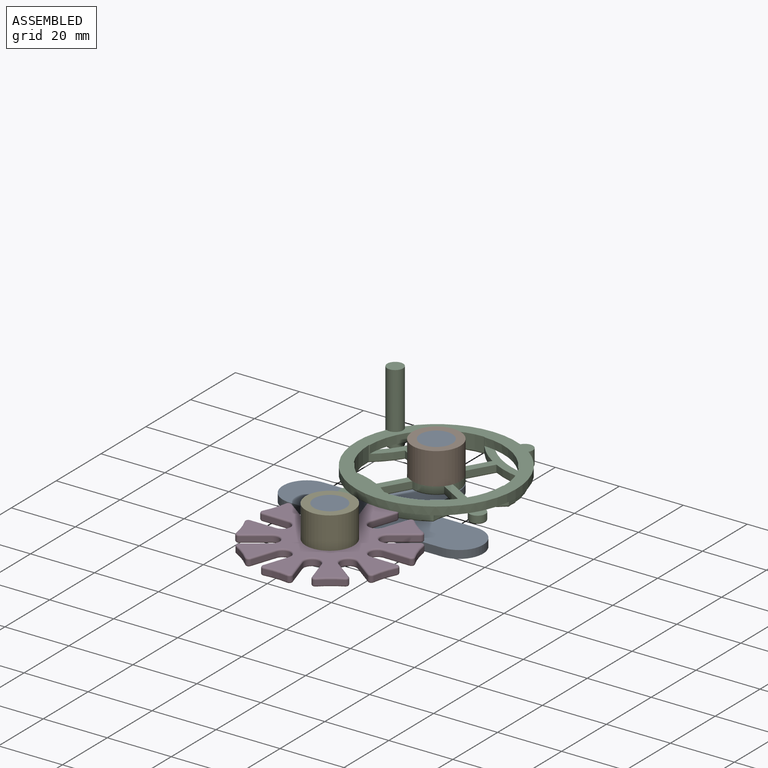
[diagram: assembled view]
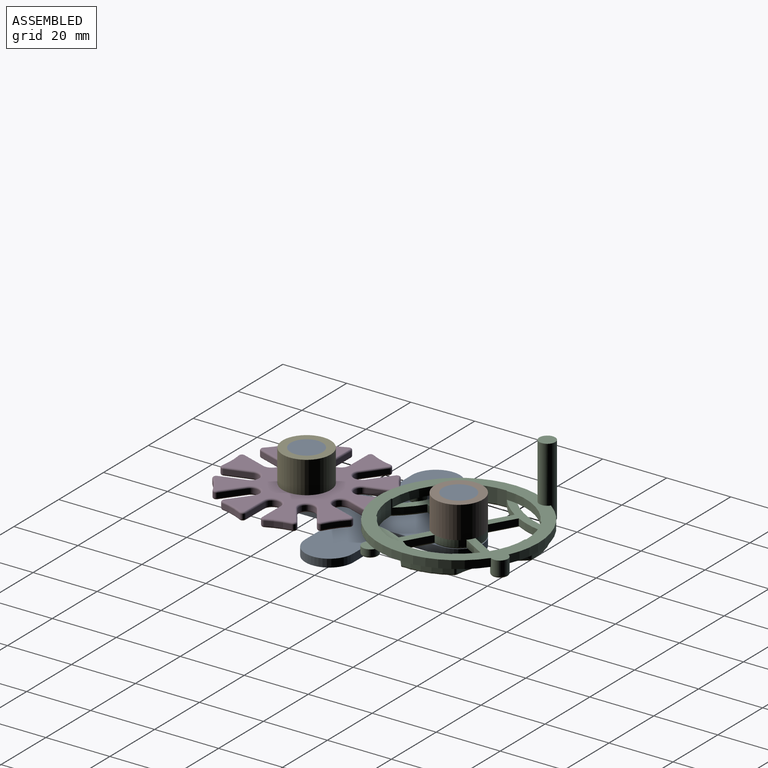
[diagram: assembled view, second angle]
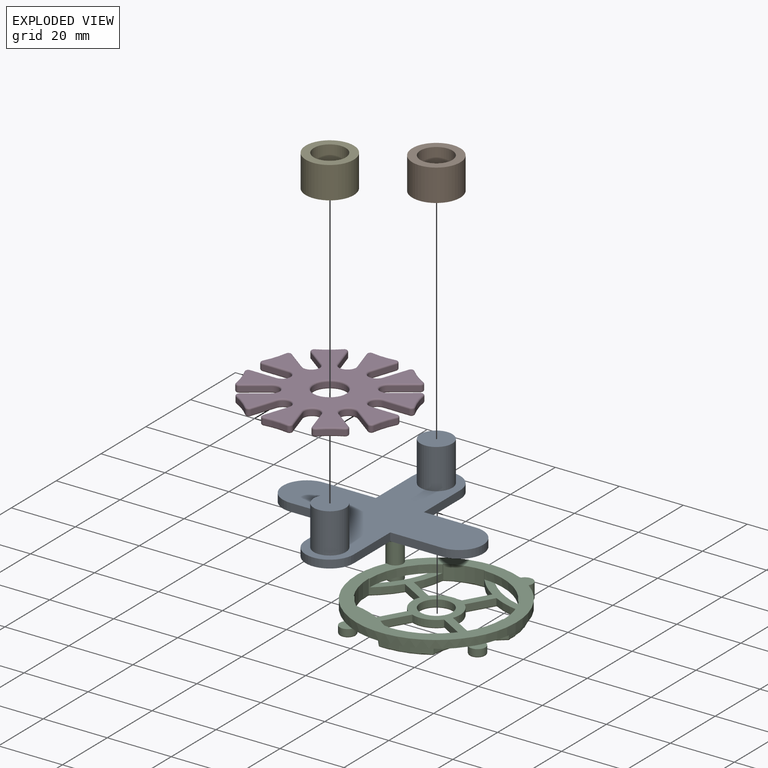
[diagram: exploded view]
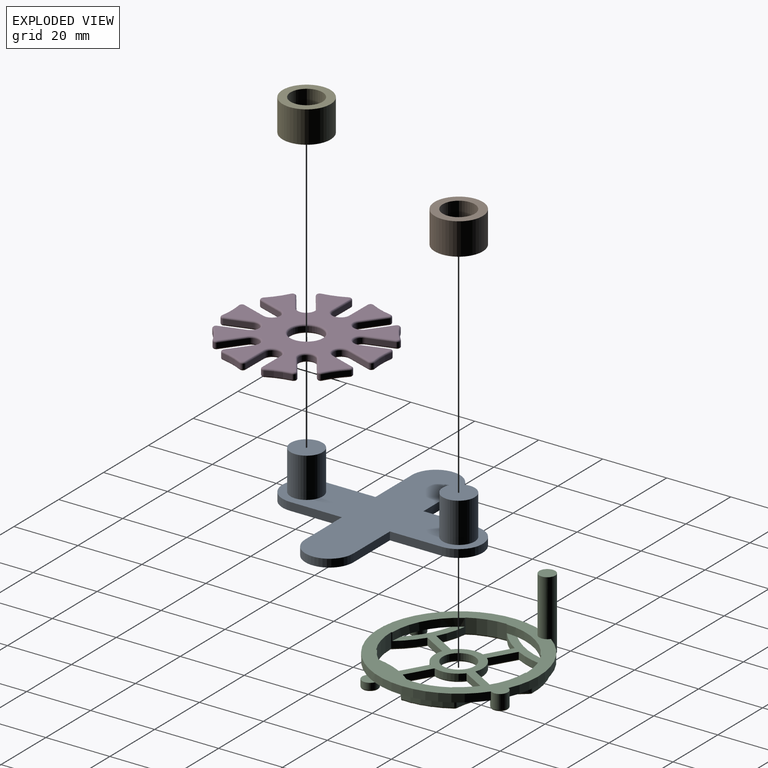
[diagram: exploded view, second angle]
ASSEMBLY  parts=5 mates=4
PART A: 18 faces, bbox 62.6x62.6x15 mm
  f0: plane 16.28x2.5mm, normal (-1,0,0), area 40.7mm2, adj f1,f11,f12,f13
  f1: plane 16.28x2.5mm, normal (0,1,0), area 40.7mm2, adj f0,f2,f12,f13
  f2: cylinder r=7.5mm len=15mm, axis (0,0,-1), area 58.9mm2, adj f1,f3,f12,f13
  f3: plane 16.28x2.5mm, normal (0,-1,0), area 40.7mm2, adj f2,f4,f12,f13
  f4: plane 16.28x2.5mm, normal (-1,0,0), area 40.7mm2, adj f3,f5,f12,f13
  f5: cylinder r=7.5mm len=15mm, axis (0,0,-1), area 58.9mm2, adj f4,f6,f12,f13
  f6: plane 16.28x2.5mm, normal (1,0,0), area 40.7mm2, adj f5,f7,f12,f13
  f7: plane 16.28x2.5mm, normal (0,-1,0), area 40.7mm2, adj f6,f8,f12,f13
  f8: cylinder r=7.5mm len=15mm, axis (0,0,-1), area 58.9mm2, adj f7,f9,f12,f13
  f9: plane 16.28x2.5mm, normal (0,1,0), area 40.7mm2, adj f8,f10,f12,f13
  f10: plane 16.28x2.5mm, normal (1,0,0), area 40.7mm2, adj f9,f11,f12,f13
  f11: cylinder r=7.5mm len=15mm, axis (0,0,-1), area 58.9mm2, adj f0,f10,f12,f13
  f12: plane 62.55x62.55mm, normal (0,0,1), area 1397.9mm2, adj f0,f1,f2,f3,f4,f5,f6,f7
  f13: plane 62.55x62.55mm, normal (0,0,-1), area 1555mm2, adj f0,f1,f2,f3,f4,f5,f6,f7
  f14: cylinder r=5mm len=12.5mm, axis (0,0,-1), area 392.7mm2, adj f12,f15
  f15: plane 10x10mm, normal (0,0,1), area 78.5mm2, adj f14
  f16: cylinder r=5mm len=12.5mm, axis (0,0,-1), area 392.7mm2, adj f12,f17
  f17: plane 10x10mm, normal (0,0,1), area 78.5mm2, adj f16
PART B: 4 faces, bbox 15x15x10 mm
  f0: cylinder r=5mm len=10mm, axis (0,0,-1), area 314.2mm2, adj f2,f3
  f1: cylinder r=7.5mm len=15mm, axis (0,0,-1), area 471.2mm2, adj f2,f3
  f2: plane 15x15mm, normal (0,0,1), area 98.2mm2, adj f0,f1
  f3: plane 15x15mm, normal (0,0,-1), area 98.2mm2, adj f0,f1
PART C: 97 faces, bbox 55.4x55.4x22.5 mm
  f0: cylinder r=25mm len=22.38mm, axis (0,0,-1), area 85.7mm2, adj f37,f44,f45,f47
  f1: cylinder r=25mm len=49.88mm, axis (0,0,-1), area 282mm2, adj f37,f42,f45,f47,f49,f52
  f2: plane 39.64x39.64mm, normal (0,0,1), area 364.4mm2, adj f3,f4,f5,f6,f8,f10,f11,f12
  f3: plane 8.97x2mm, normal (-1,0,0), area 17.9mm2, adj f2,f4,f35,f93
  f4: cylinder r=7.5mm len=6.15mm, axis (0,0,-1), area 18.5mm2, adj f2,f3,f5,f95
  f5: plane 8.97x2mm, normal (0,1,0), area 17.9mm2, adj f2,f4,f6,f94
  f6: cylinder r=27.5mm len=9.27mm, axis (0,0,-1), area 19.8mm2, adj f2,f5,f7,f41,f45,f92
  f7: cylinder r=21.22mm len=7.91mm, axis (0,0,-1), area 51mm2, adj f6,f35,f45,f90
  f8: cylinder r=27.5mm len=9.27mm, axis (0,0,-1), area 19.8mm2, adj f2,f9,f31,f40,f45,f83
  f9: cylinder r=21.22mm len=7.91mm, axis (0,0,-1), area 51mm2, adj f8,f10,f45,f82
  f10: cylinder r=27.5mm len=9.27mm, axis (0,0,-1), area 19.8mm2, adj f2,f9,f11,f41,f45,f80
  f11: plane 8.97x2mm, normal (0,-1,0), area 17.9mm2, adj f2,f10,f12,f78
  f12: cylinder r=7.5mm len=6.15mm, axis (0,0,-1), area 18.5mm2, adj f2,f11,f31,f79
  f13: cylinder r=21.22mm len=7.91mm, axis (0,0,-1), area 51mm2, adj f14,f32,f45,f84
  f14: cylinder r=27.5mm len=9.27mm, axis (0,0,-1), area 19.8mm2, adj f2,f13,f15,f40,f45,f85
  f15: plane 8.97x2mm, normal (1,0,0), area 17.9mm2, adj f2,f14,f16,f87
  f16: cylinder r=7.5mm len=6.15mm, axis (0,0,-1), area 18.5mm2, adj f2,f15,f17,f89
  f17: plane 8.97x2mm, normal (0,-1,0), area 17.9mm2, adj f2,f16,f32,f88
  f18: cylinder r=25mm len=21.25mm, axis (0,0,-1), area 43.9mm2, adj f2,f19,f33,f37,f59
  f19: cylinder r=23.72mm len=10.59mm, axis (0,0,-1), area 30.5mm2, adj f18,f20,f37,f58
  f20: cylinder r=25mm len=21.25mm, axis (0,0,-1), area 43.9mm2, adj f2,f19,f21,f37,f60
  f21: cylinder r=23.72mm len=10.36mm, axis (0,0,-1), area 29.5mm2, adj f20,f37,f56,f62
  f22: cylinder r=25mm len=20.39mm, axis (0,0,-1), area 42mm2, adj f2,f37,f55,f56,f66
  f23: cylinder r=23.72mm len=10.36mm, axis (0,0,-1), area 29.5mm2, adj f24,f37,f55,f65
  f24: cylinder r=25mm len=21.25mm, axis (0,0,-1), area 43.9mm2, adj f2,f23,f33,f37,f63
  f25: plane 8.97x2mm, normal (1,0,0), area 17.9mm2, adj f2,f26,f34,f75
  f26: cylinder r=27.5mm len=9.27mm, axis (0,0,-1), area 19.8mm2, adj f2,f25,f27,f38,f45,f77
  f27: cylinder r=21.22mm len=7.91mm, axis (0,0,-1), area 51mm2, adj f26,f28,f45,f76
  f28: cylinder r=27.5mm len=9.27mm, axis (0,0,-1), area 19.8mm2, adj f2,f27,f29,f39,f45,f74
  f29: plane 8.97x2mm, normal (0,1,0), area 17.9mm2, adj f2,f28,f34,f72
  f30: cylinder r=5mm len=10mm, axis (0,0,-1), area 62.8mm2, adj f2,f96
  f31: plane 8.97x2mm, normal (-1,0,0), area 17.9mm2, adj f2,f8,f12,f81
  f32: cylinder r=27.5mm len=9.27mm, axis (0,0,-1), area 19.8mm2, adj f2,f13,f17,f39,f45,f86
  f33: cylinder r=23.72mm len=10.59mm, axis (0,0,-1), area 30.5mm2, adj f18,f24,f37,f61
  f34: cylinder r=7.5mm len=6.15mm, axis (0,0,-1), area 18.5mm2, adj f2,f25,f29,f73
  f35: cylinder r=27.5mm len=9.27mm, axis (0,0,-1), area 19.8mm2, adj f2,f3,f7,f38,f45,f91
  f36: plane 41.31x41.26mm, normal (0,0,-1), area 328.3mm2, adj f58,f59,f60,f61,f62,f63,f64,f65
  f37: plane 49.88x49.75mm, normal (0,0,-1), area 356.3mm2, adj f0,f1,f18,f19,f20,f21,f22,f23
  f38: cylinder r=21mm len=20.51mm, axis (0,0,-1), area 53.6mm2, adj f2,f26,f35,f37,f45
  f39: cylinder r=21mm len=20.51mm, axis (0,0,-1), area 53.6mm2, adj f2,f28,f32,f37,f45
  f40: cylinder r=21mm len=20.51mm, axis (0,0,-1), area 53.6mm2, adj f2,f8,f14,f37,f45
  f41: cylinder r=21mm len=20.51mm, axis (0,0,-1), area 53.6mm2, adj f2,f6,f10,f37,f45
  f42: plane 2.5x0.13mm, normal (-1,0,0), area 0.3mm2, adj f1,f37,f43,f45
  f43: cylinder r=2.5mm len=5mm, axis (0,0,-1), area 51.1mm2, adj f37,f42,f44,f45,f71
  f44: plane 2.5x0.13mm, normal (1,0,0), area 0.3mm2, adj f0,f37,f43,f45
  f45: plane 52.5x49.88mm, normal (0,0,1), area 568.2mm2, adj f0,f1,f6,f7,f8,f9,f10,f13
  f46: plane 4x4mm, normal (0,0,-1), area 12.6mm2, adj f71
  f47: cylinder r=2.5mm len=22mm, axis (0,0,1), area 326.6mm2, adj f0,f1,f37,f45,f57,f70
  f48: plane 4x4mm, normal (0,0,-1), area 12.6mm2, adj f70
  f49: plane 5x2.63mm, normal (0,0,1), area 10mm2, adj f1,f50
  f50: cylinder r=2.5mm len=5mm, axis (0,0,1), area 31.4mm2, adj f37,f49,f69
  f51: plane 4x4mm, normal (0,0,-1), area 12.6mm2, adj f69
  f52: plane 5x2.63mm, normal (0,0,1), area 10mm2, adj f1,f53
  f53: cylinder r=2.5mm len=5mm, axis (0,0,1), area 31.4mm2, adj f37,f52,f68
  f54: plane 4x4mm, normal (0,0,-1), area 12.6mm2, adj f68
  f55: cylinder r=1mm len=2mm, axis (0,0,1), area 1.8mm2, adj f22,f23,f37,f67
  f56: cylinder r=1mm len=2mm, axis (0,0,1), area 1.8mm2, adj f21,f22,f37,f64
  f57: plane 5x5mm, normal (0,0,1), area 19.6mm2, adj f47
  f58: torus R=23.22mm, axis (0,0,1), area 11.7mm2, adj f19,f36,f59,f60
  f59: torus R=25.5mm, axis (0,0,1), area 17.2mm2, adj f18,f36,f58,f61
  f60: torus R=25.5mm, axis (0,0,1), area 17.2mm2, adj f20,f36,f58,f62
  f61: torus R=23.22mm, axis (0,0,1), area 11.7mm2, adj f33,f36,f59,f63
  f62: torus R=23.22mm, axis (0,0,1), area 11.4mm2, adj f21,f36,f60,f64
  f63: torus R=25.5mm, axis (0,0,1), area 17.2mm2, adj f24,f36,f61,f65
  f64: torus R=0.5mm, axis (0,0,1), area 0.6mm2, adj f36,f56,f62,f66
  f65: torus R=23.22mm, axis (0,0,1), area 11.4mm2, adj f23,f36,f63,f67
  f66: torus R=25.5mm, axis (0,0,1), area 16.6mm2, adj f22,f36,f64,f67
  f67: torus R=0.5mm, axis (0,0,1), area 0.6mm2, adj f36,f55,f65,f66
  f68: torus R=2mm, axis (0,0,-1), area 11.4mm2, adj f53,f54
  f69: torus R=2mm, axis (0,0,-1), area 11.4mm2, adj f50,f51
  f70: torus R=2mm, axis (0,0,-1), area 11.4mm2, adj f47,f48
  f71: torus R=2mm, axis (0,0,-1), area 11.4mm2, adj f43,f46
  f72: cylinder r=0.5mm len=9.89mm, axis (-1,0,0), area 7.3mm2, adj f29,f36,f73,f74
  f73: torus R=7mm, axis (0,0,1), area 7.3mm2, adj f34,f36,f72,f75
  f74: torus R=27mm, axis (0,0,1), area 7.7mm2, adj f28,f36,f72,f76
  f75: cylinder r=0.5mm len=9.89mm, axis (0,1,0), area 7.3mm2, adj f25,f36,f73,f77
  f76: torus R=21.72mm, axis (0,0,1), area 9.1mm2, adj f27,f36,f74,f77
  f77: torus R=27mm, axis (0,0,1), area 7.7mm2, adj f26,f36,f75,f76
  f78: cylinder r=0.5mm len=9.89mm, axis (1,0,0), area 7.3mm2, adj f11,f36,f79,f80
  f79: torus R=7mm, axis (0,0,1), area 7.3mm2, adj f12,f36,f78,f81
  f80: torus R=27mm, axis (0,0,1), area 7.7mm2, adj f10,f36,f78,f82
  f81: cylinder r=0.5mm len=9.89mm, axis (0,-1,0), area 7.3mm2, adj f31,f36,f79,f83
  f82: torus R=21.72mm, axis (0,0,1), area 9.1mm2, adj f9,f36,f80,f83
  f83: torus R=27mm, axis (0,0,1), area 7.7mm2, adj f8,f36,f81,f82
  f84: torus R=21.72mm, axis (0,0,1), area 9.1mm2, adj f13,f36,f85,f86
  f85: torus R=27mm, axis (0,0,1), area 7.7mm2, adj f14,f36,f84,f87
  f86: torus R=27mm, axis (0,0,1), area 7.7mm2, adj f32,f36,f84,f88
  f87: cylinder r=0.5mm len=9.89mm, axis (0,1,0), area 7.3mm2, adj f15,f36,f85,f89
  f88: cylinder r=0.5mm len=9.89mm, axis (1,0,0), area 7.3mm2, adj f17,f36,f86,f89
  f89: torus R=7mm, axis (0,0,1), area 7.3mm2, adj f16,f36,f87,f88
  f90: torus R=21.72mm, axis (0,0,1), area 9.1mm2, adj f7,f36,f91,f92
  f91: torus R=27mm, axis (0,0,1), area 7.7mm2, adj f35,f36,f90,f93
  f92: torus R=27mm, axis (0,0,1), area 7.7mm2, adj f6,f36,f90,f94
  f93: cylinder r=0.5mm len=9.89mm, axis (0,-1,0), area 7.3mm2, adj f3,f36,f91,f95
  f94: cylinder r=0.5mm len=9.89mm, axis (-1,0,0), area 7.3mm2, adj f5,f36,f92,f95
  f95: torus R=7mm, axis (0,0,1), area 7.3mm2, adj f4,f36,f93,f94
  f96: torus R=5.5mm, axis (0,0,1), area 25.6mm2, adj f30,f36
PART D: 185 faces, bbox 48.4x48.5x2.5 mm
  f0: cylinder r=23.72mm len=7mm, axis (0,0,-1), area 11.1mm2, adj f43,f56,f120,f181
  f1: plane 8.18x1.5mm, normal (-1,0,0), area 12.3mm2, adj f2,f43,f121,f180
  f2: cylinder r=2.5mm len=5mm, axis (0,0,-1), area 11.8mm2, adj f1,f3,f119,f178
  f3: plane 8.18x1.5mm, normal (1,0,0), area 12.3mm2, adj f2,f57,f117,f176
  f4: cylinder r=23.72mm len=7mm, axis (0,0,-1), area 11.1mm2, adj f57,f58,f113,f172
  f5: plane 6.62x4.81mm, normal (-0.81,-0.59,0), area 12.3mm2, adj f6,f58,f109,f168
  f6: cylinder r=2.5mm len=4.52mm, axis (0,0,-1), area 11.8mm2, adj f5,f7,f107,f166
  f7: plane 6.62x4.81mm, normal (0.81,0.59,0), area 12.3mm2, adj f6,f59,f105,f164
  f8: cylinder r=23.72mm len=5.95mm, axis (0,0,-1), area 11.1mm2, adj f59,f60,f101,f160
  f9: plane 7.78x2.53mm, normal (-0.31,-0.95,0), area 12.3mm2, adj f10,f60,f97,f156
  f10: cylinder r=2.5mm len=4.88mm, axis (0,0,-1), area 11.8mm2, adj f9,f11,f95,f154
  f11: plane 7.78x2.53mm, normal (0.31,0.95,0), area 12.3mm2, adj f10,f61,f93,f152
  f12: cylinder r=23.72mm len=7.36mm, axis (0,0,-1), area 11.1mm2, adj f61,f62,f89,f148
  f13: plane 7.78x2.53mm, normal (0.31,-0.95,0), area 12.3mm2, adj f14,f62,f85,f144
  f14: cylinder r=2.5mm len=4.88mm, axis (0,0,-1), area 11.8mm2, adj f13,f15,f83,f142
  f15: plane 7.78x2.53mm, normal (-0.31,0.95,0), area 12.3mm2, adj f14,f44,f81,f140
  f16: cylinder r=23.72mm len=5.95mm, axis (0,0,-1), area 11.1mm2, adj f44,f45,f77,f136
  f17: plane 6.62x4.81mm, normal (0.81,-0.59,0), area 12.3mm2, adj f18,f45,f73,f132
  f18: cylinder r=2.5mm len=4.52mm, axis (0,0,-1), area 11.8mm2, adj f17,f19,f71,f130
  f19: plane 6.62x4.81mm, normal (-0.81,0.59,0), area 12.3mm2, adj f18,f46,f69,f128
  f20: cylinder r=23.72mm len=7mm, axis (0,0,-1), area 11.1mm2, adj f46,f47,f65,f124
  f21: plane 8.18x1.5mm, normal (1,0,0), area 12.3mm2, adj f22,f47,f64,f125
  f22: cylinder r=2.5mm len=5mm, axis (0,0,-1), area 11.8mm2, adj f21,f23,f66,f127
  f23: plane 8.18x1.5mm, normal (-1,0,0), area 12.3mm2, adj f22,f48,f68,f129
  f24: cylinder r=23.72mm len=7mm, axis (0,0,-1), area 11.1mm2, adj f48,f49,f72,f133
  f25: plane 6.62x4.81mm, normal (0.81,0.59,0), area 12.3mm2, adj f26,f49,f76,f137
  f26: cylinder r=2.5mm len=4.52mm, axis (0,0,-1), area 11.8mm2, adj f25,f27,f78,f139
  f27: plane 6.62x4.81mm, normal (-0.81,-0.59,0), area 12.3mm2, adj f26,f50,f80,f141
  f28: cylinder r=23.72mm len=5.95mm, axis (0,0,-1), area 11.1mm2, adj f50,f51,f84,f145
  f29: plane 7.78x2.53mm, normal (0.31,0.95,0), area 12.3mm2, adj f30,f51,f88,f149
  f30: cylinder r=2.5mm len=4.88mm, axis (0,0,-1), area 11.8mm2, adj f29,f31,f90,f151
  f31: plane 7.78x2.53mm, normal (-0.31,-0.95,0), area 12.3mm2, adj f30,f52,f92,f153
  f32: cylinder r=23.72mm len=7.36mm, axis (0,0,-1), area 11.1mm2, adj f52,f53,f96,f157
  f33: plane 7.78x2.53mm, normal (-0.31,0.95,0), area 12.3mm2, adj f34,f53,f100,f161
  f34: cylinder r=2.5mm len=4.88mm, axis (0,0,-1), area 11.8mm2, adj f33,f35,f102,f163
  f35: plane 7.78x2.53mm, normal (0.31,-0.95,0), area 12.3mm2, adj f34,f54,f104,f165
  f36: cylinder r=23.72mm len=5.95mm, axis (0,0,-1), area 11.1mm2, adj f54,f55,f108,f169
  f37: plane 6.62x4.81mm, normal (-0.81,0.59,0), area 12.3mm2, adj f38,f55,f112,f173
  f38: cylinder r=2.5mm len=4.52mm, axis (0,0,-1), area 11.8mm2, adj f37,f39,f114,f175
  f39: plane 6.62x4.81mm, normal (0.81,-0.59,0), area 12.3mm2, adj f38,f56,f116,f177
  f40: cylinder r=5mm len=10mm, axis (0,0,-1), area 47.1mm2, adj f183,f184
  f41: plane 47.36x47.25mm, normal (0,0,1), area 998.8mm2, adj f63,f64,f65,f66,f67,f68,f69,f70
  f42: plane 47.36x47.25mm, normal (0,0,-1), area 998.8mm2, adj f123,f124,f125,f126,f127,f128,f129,f130
  f43: cylinder r=1mm len=1.5mm, axis (0,0,-1), area 3.1mm2, adj f0,f1,f122,f182
  f44: cylinder r=1mm len=1.66mm, axis (0,0,-1), area 3.1mm2, adj f15,f16,f79,f138
  f45: cylinder r=1mm len=1.7mm, axis (0,0,-1), area 3.1mm2, adj f16,f17,f75,f134
  f46: cylinder r=1mm len=1.58mm, axis (0,0,-1), area 3.1mm2, adj f19,f20,f67,f126
  f47: cylinder r=1mm len=1.5mm, axis (0,0,-1), area 3.1mm2, adj f20,f21,f63,f123
  f48: cylinder r=1mm len=1.5mm, axis (0,0,-1), area 3.1mm2, adj f23,f24,f70,f131
  f49: cylinder r=1mm len=1.58mm, axis (0,0,-1), area 3.1mm2, adj f24,f25,f74,f135
  f50: cylinder r=1mm len=1.7mm, axis (0,0,-1), area 3.1mm2, adj f27,f28,f82,f143
  f51: cylinder r=1mm len=1.66mm, axis (0,0,-1), area 3.1mm2, adj f28,f29,f86,f147
  f52: cylinder r=1mm len=1.5mm, axis (0,0,-1), area 3.1mm2, adj f31,f32,f94,f155
  f53: cylinder r=1mm len=1.5mm, axis (0,0,-1), area 3.1mm2, adj f32,f33,f98,f159
  f54: cylinder r=1mm len=1.66mm, axis (0,0,-1), area 3.1mm2, adj f35,f36,f106,f167
  f55: cylinder r=1mm len=1.7mm, axis (0,0,-1), area 3.1mm2, adj f36,f37,f110,f171
  f56: cylinder r=1mm len=1.58mm, axis (0,0,-1), area 3.1mm2, adj f0,f39,f118,f179
  f57: cylinder r=1mm len=1.5mm, axis (0,0,-1), area 3.1mm2, adj f3,f4,f115,f174
  f58: cylinder r=1mm len=1.58mm, axis (0,0,-1), area 3.1mm2, adj f4,f5,f111,f170
  f59: cylinder r=1mm len=1.7mm, axis (0,0,-1), area 3.1mm2, adj f7,f8,f103,f162
  f60: cylinder r=1mm len=1.66mm, axis (0,0,-1), area 3.1mm2, adj f8,f9,f99,f158
  f61: cylinder r=1mm len=1.5mm, axis (0,0,-1), area 3.1mm2, adj f11,f12,f91,f150
  f62: cylinder r=1mm len=1.5mm, axis (0,0,-1), area 3.1mm2, adj f12,f13,f87,f146
  f63: torus R=0.5mm, axis (0,0,1), area 1.3mm2, adj f41,f47,f64,f65
  f64: cylinder r=0.5mm len=8.18mm, axis (0,-1,0), area 6.4mm2, adj f21,f41,f63,f66
  f65: torus R=24.22mm, axis (0,0,1), area 5.8mm2, adj f20,f41,f63,f67
  f66: torus R=3mm, axis (0,0,1), area 6.6mm2, adj f22,f41,f64,f68
  f67: torus R=0.5mm, axis (0,0,1), area 1.3mm2, adj f41,f46,f65,f69
  f68: cylinder r=0.5mm len=8.18mm, axis (0,1,0), area 6.4mm2, adj f23,f41,f66,f70
  f69: cylinder r=0.5mm len=6.91mm, axis (0.59,0.81,0), area 6.4mm2, adj f19,f41,f67,f71
  f70: torus R=0.5mm, axis (0,0,1), area 1.3mm2, adj f41,f48,f68,f72
  f71: torus R=3mm, axis (0,0,1), area 6.6mm2, adj f18,f41,f69,f73
  f72: torus R=24.22mm, axis (0,0,1), area 5.8mm2, adj f24,f41,f70,f74
  f73: cylinder r=0.5mm len=6.91mm, axis (-0.59,-0.81,0), area 6.4mm2, adj f17,f41,f71,f75
  f74: torus R=0.5mm, axis (0,0,1), area 1.3mm2, adj f41,f49,f72,f76
  f75: torus R=0.5mm, axis (0,0,1), area 1.3mm2, adj f41,f45,f73,f77
  f76: cylinder r=0.5mm len=6.91mm, axis (0.59,-0.81,0), area 6.4mm2, adj f25,f41,f74,f78
  f77: torus R=24.22mm, axis (0,0,1), area 5.8mm2, adj f16,f41,f75,f79
  f78: torus R=3mm, axis (0,0,1), area 6.6mm2, adj f26,f41,f76,f80
  f79: torus R=0.5mm, axis (0,0,1), area 1.3mm2, adj f41,f44,f77,f81
  f80: cylinder r=0.5mm len=6.91mm, axis (-0.59,0.81,0), area 6.4mm2, adj f27,f41,f78,f82
  f81: cylinder r=0.5mm len=7.93mm, axis (0.95,0.31,0), area 6.4mm2, adj f15,f41,f79,f83
  f82: torus R=0.5mm, axis (0,0,1), area 1.3mm2, adj f41,f50,f80,f84
  f83: torus R=3mm, axis (0,0,1), area 6.6mm2, adj f14,f41,f81,f85
  f84: torus R=24.22mm, axis (0,0,1), area 5.8mm2, adj f28,f41,f82,f86
  f85: cylinder r=0.5mm len=7.93mm, axis (-0.95,-0.31,0), area 6.4mm2, adj f13,f41,f83,f87
  f86: torus R=0.5mm, axis (0,0,1), area 1.3mm2, adj f41,f51,f84,f88
  f87: torus R=0.5mm, axis (0,0,1), area 1.3mm2, adj f41,f62,f85,f89
  f88: cylinder r=0.5mm len=7.93mm, axis (0.95,-0.31,0), area 6.4mm2, adj f29,f41,f86,f90
  f89: torus R=24.22mm, axis (0,0,1), area 5.8mm2, adj f12,f41,f87,f91
  f90: torus R=3mm, axis (0,0,1), area 6.6mm2, adj f30,f41,f88,f92
  f91: torus R=0.5mm, axis (0,0,1), area 1.3mm2, adj f41,f61,f89,f93
  f92: cylinder r=0.5mm len=7.93mm, axis (-0.95,0.31,0), area 6.4mm2, adj f31,f41,f90,f94
  f93: cylinder r=0.5mm len=7.93mm, axis (0.95,-0.31,0), area 6.4mm2, adj f11,f41,f91,f95
  f94: torus R=0.5mm, axis (0,0,1), area 1.3mm2, adj f41,f52,f92,f96
  f95: torus R=3mm, axis (0,0,1), area 6.6mm2, adj f10,f41,f93,f97
  f96: torus R=24.22mm, axis (0,0,1), area 5.8mm2, adj f32,f41,f94,f98
  f97: cylinder r=0.5mm len=7.93mm, axis (-0.95,0.31,0), area 6.4mm2, adj f9,f41,f95,f99
  f98: torus R=0.5mm, axis (0,0,1), area 1.3mm2, adj f41,f53,f96,f100
  f99: torus R=0.5mm, axis (0,0,1), area 1.3mm2, adj f41,f60,f97,f101
  f100: cylinder r=0.5mm len=7.93mm, axis (0.95,0.31,0), area 6.4mm2, adj f33,f41,f98,f102
  f101: torus R=24.22mm, axis (0,0,1), area 5.8mm2, adj f8,f41,f99,f103
  f102: torus R=3mm, axis (0,0,1), area 6.6mm2, adj f34,f41,f100,f104
  f103: torus R=0.5mm, axis (0,0,1), area 1.3mm2, adj f41,f59,f101,f105
  f104: cylinder r=0.5mm len=7.93mm, axis (-0.95,-0.31,0), area 6.4mm2, adj f35,f41,f102,f106
  f105: cylinder r=0.5mm len=6.91mm, axis (0.59,-0.81,0), area 6.4mm2, adj f7,f41,f103,f107
  f106: torus R=0.5mm, axis (0,0,1), area 1.3mm2, adj f41,f54,f104,f108
  f107: torus R=3mm, axis (0,0,1), area 6.6mm2, adj f6,f41,f105,f109
  f108: torus R=24.22mm, axis (0,0,1), area 5.8mm2, adj f36,f41,f106,f110
  f109: cylinder r=0.5mm len=6.91mm, axis (-0.59,0.81,0), area 6.4mm2, adj f5,f41,f107,f111
  f110: torus R=0.5mm, axis (0,0,1), area 1.3mm2, adj f41,f55,f108,f112
  f111: torus R=0.5mm, axis (0,0,1), area 1.3mm2, adj f41,f58,f109,f113
  f112: cylinder r=0.5mm len=6.91mm, axis (0.59,0.81,0), area 6.4mm2, adj f37,f41,f110,f114
  f113: torus R=24.22mm, axis (0,0,1), area 5.8mm2, adj f4,f41,f111,f115
  f114: torus R=3mm, axis (0,0,1), area 6.6mm2, adj f38,f41,f112,f116
  f115: torus R=0.5mm, axis (0,0,1), area 1.3mm2, adj f41,f57,f113,f117
  f116: cylinder r=0.5mm len=6.91mm, axis (-0.59,-0.81,0), area 6.4mm2, adj f39,f41,f114,f118
  f117: cylinder r=0.5mm len=8.18mm, axis (0,-1,0), area 6.4mm2, adj f3,f41,f115,f119
  f118: torus R=0.5mm, axis (0,0,1), area 1.3mm2, adj f41,f56,f116,f120
  f119: torus R=3mm, axis (0,0,1), area 6.6mm2, adj f2,f41,f117,f121
  f120: torus R=24.22mm, axis (0,0,1), area 5.8mm2, adj f0,f41,f118,f122
  f121: cylinder r=0.5mm len=8.18mm, axis (0,1,0), area 6.4mm2, adj f1,f41,f119,f122
  f122: torus R=0.5mm, axis (0,0,1), area 1.3mm2, adj f41,f43,f120,f121
  f123: torus R=0.5mm, axis (0,0,1), area 1.3mm2, adj f42,f47,f124,f125
  f124: torus R=24.22mm, axis (0,0,1), area 5.8mm2, adj f20,f42,f123,f126
  f125: cylinder r=0.5mm len=8.18mm, axis (0,1,0), area 6.4mm2, adj f21,f42,f123,f127
  f126: torus R=0.5mm, axis (0,0,1), area 1.3mm2, adj f42,f46,f124,f128
  f127: torus R=3mm, axis (0,0,1), area 6.6mm2, adj f22,f42,f125,f129
  f128: cylinder r=0.5mm len=6.91mm, axis (-0.59,-0.81,0), area 6.4mm2, adj f19,f42,f126,f130
  f129: cylinder r=0.5mm len=8.18mm, axis (0,-1,0), area 6.4mm2, adj f23,f42,f127,f131
  f130: torus R=3mm, axis (0,0,1), area 6.6mm2, adj f18,f42,f128,f132
  f131: torus R=0.5mm, axis (0,0,1), area 1.3mm2, adj f42,f48,f129,f133
  f132: cylinder r=0.5mm len=6.91mm, axis (0.59,0.81,0), area 6.4mm2, adj f17,f42,f130,f134
  f133: torus R=24.22mm, axis (0,0,1), area 5.8mm2, adj f24,f42,f131,f135
  f134: torus R=0.5mm, axis (0,0,1), area 1.3mm2, adj f42,f45,f132,f136
  f135: torus R=0.5mm, axis (0,0,1), area 1.3mm2, adj f42,f49,f133,f137
  f136: torus R=24.22mm, axis (0,0,1), area 5.8mm2, adj f16,f42,f134,f138
  f137: cylinder r=0.5mm len=6.91mm, axis (-0.59,0.81,0), area 6.4mm2, adj f25,f42,f135,f139
  f138: torus R=0.5mm, axis (0,0,1), area 1.3mm2, adj f42,f44,f136,f140
  f139: torus R=3mm, axis (0,0,1), area 6.6mm2, adj f26,f42,f137,f141
  f140: cylinder r=0.5mm len=7.93mm, axis (-0.95,-0.31,0), area 6.4mm2, adj f15,f42,f138,f142
  f141: cylinder r=0.5mm len=6.91mm, axis (0.59,-0.81,0), area 6.4mm2, adj f27,f42,f139,f143
  f142: torus R=3mm, axis (0,0,1), area 6.6mm2, adj f14,f42,f140,f144
  f143: torus R=0.5mm, axis (0,0,1), area 1.3mm2, adj f42,f50,f141,f145
  f144: cylinder r=0.5mm len=7.93mm, axis (0.95,0.31,0), area 6.4mm2, adj f13,f42,f142,f146
  f145: torus R=24.22mm, axis (0,0,1), area 5.8mm2, adj f28,f42,f143,f147
  f146: torus R=0.5mm, axis (0,0,1), area 1.3mm2, adj f42,f62,f144,f148
  f147: torus R=0.5mm, axis (0,0,1), area 1.3mm2, adj f42,f51,f145,f149
  f148: torus R=24.22mm, axis (0,0,1), area 5.8mm2, adj f12,f42,f146,f150
  f149: cylinder r=0.5mm len=7.93mm, axis (-0.95,0.31,0), area 6.4mm2, adj f29,f42,f147,f151
  f150: torus R=0.5mm, axis (0,0,1), area 1.3mm2, adj f42,f61,f148,f152
  f151: torus R=3mm, axis (0,0,1), area 6.6mm2, adj f30,f42,f149,f153
  f152: cylinder r=0.5mm len=7.93mm, axis (-0.95,0.31,0), area 6.4mm2, adj f11,f42,f150,f154
  f153: cylinder r=0.5mm len=7.93mm, axis (0.95,-0.31,0), area 6.4mm2, adj f31,f42,f151,f155
  f154: torus R=3mm, axis (0,0,1), area 6.6mm2, adj f10,f42,f152,f156
  f155: torus R=0.5mm, axis (0,0,1), area 1.3mm2, adj f42,f52,f153,f157
  f156: cylinder r=0.5mm len=7.93mm, axis (0.95,-0.31,0), area 6.4mm2, adj f9,f42,f154,f158
  f157: torus R=24.22mm, axis (0,0,1), area 5.8mm2, adj f32,f42,f155,f159
  f158: torus R=0.5mm, axis (0,0,1), area 1.3mm2, adj f42,f60,f156,f160
  f159: torus R=0.5mm, axis (0,0,1), area 1.3mm2, adj f42,f53,f157,f161
  f160: torus R=24.22mm, axis (0,0,1), area 5.8mm2, adj f8,f42,f158,f162
  f161: cylinder r=0.5mm len=7.93mm, axis (-0.95,-0.31,0), area 6.4mm2, adj f33,f42,f159,f163
  f162: torus R=0.5mm, axis (0,0,1), area 1.3mm2, adj f42,f59,f160,f164
  f163: torus R=3mm, axis (0,0,1), area 6.6mm2, adj f34,f42,f161,f165
  f164: cylinder r=0.5mm len=6.91mm, axis (-0.59,0.81,0), area 6.4mm2, adj f7,f42,f162,f166
  f165: cylinder r=0.5mm len=7.93mm, axis (0.95,0.31,0), area 6.4mm2, adj f35,f42,f163,f167
  f166: torus R=3mm, axis (0,0,1), area 6.6mm2, adj f6,f42,f164,f168
  f167: torus R=0.5mm, axis (0,0,1), area 1.3mm2, adj f42,f54,f165,f169
  f168: cylinder r=0.5mm len=6.91mm, axis (0.59,-0.81,0), area 6.4mm2, adj f5,f42,f166,f170
  f169: torus R=24.22mm, axis (0,0,1), area 5.8mm2, adj f36,f42,f167,f171
  f170: torus R=0.5mm, axis (0,0,1), area 1.3mm2, adj f42,f58,f168,f172
  f171: torus R=0.5mm, axis (0,0,1), area 1.3mm2, adj f42,f55,f169,f173
  f172: torus R=24.22mm, axis (0,0,1), area 5.8mm2, adj f4,f42,f170,f174
  f173: cylinder r=0.5mm len=6.91mm, axis (-0.59,-0.81,0), area 6.4mm2, adj f37,f42,f171,f175
  f174: torus R=0.5mm, axis (0,0,1), area 1.3mm2, adj f42,f57,f172,f176
  f175: torus R=3mm, axis (0,0,1), area 6.6mm2, adj f38,f42,f173,f177
  f176: cylinder r=0.5mm len=8.18mm, axis (0,1,0), area 6.4mm2, adj f3,f42,f174,f178
  f177: cylinder r=0.5mm len=6.91mm, axis (0.59,0.81,0), area 6.4mm2, adj f39,f42,f175,f179
  f178: torus R=3mm, axis (0,0,1), area 6.6mm2, adj f2,f42,f176,f180
  f179: torus R=0.5mm, axis (0,0,1), area 1.3mm2, adj f42,f56,f177,f181
  f180: cylinder r=0.5mm len=8.18mm, axis (0,-1,0), area 6.4mm2, adj f1,f42,f178,f182
  f181: torus R=24.22mm, axis (0,0,1), area 5.8mm2, adj f0,f42,f179,f182
  f182: torus R=0.5mm, axis (0,0,1), area 1.3mm2, adj f42,f43,f180,f181
  f183: torus R=5.5mm, axis (0,0,1), area 25.6mm2, adj f40,f42
  f184: torus R=5.5mm, axis (0,0,1), area 25.6mm2, adj f40,f41
PART E: same geometry as B
PLACE A t=(69.07,61.62,16.25)mm fixed
PLACE B t=(31.63,52.29,21.25)mm
PLACE C rot(axis=(0,0,1),149.9deg) t=(119.18,171.93,18.75)mm
PLACE D rot(axis=(0,0,1),53.4deg) t=(69.07,37.84,18.75)mm
PLACE E t=(31.63,4.74,21.25)mm
MATE revolute D.f40 <-> A.f5  axis (0,0,-1) through (69.07,37.84,18.75)mm
MATE fastened B.f0 <-> A.f11  axis (0,0,1) through (69.07,85.4,31.25)mm
MATE fastened E.f0 <-> A.f5  axis (0,0,1) through (69.07,37.84,31.25)mm
MATE revolute C.f0 <-> A.f11  axis (0,0,-1) through (69.07,85.4,18.75)mm
